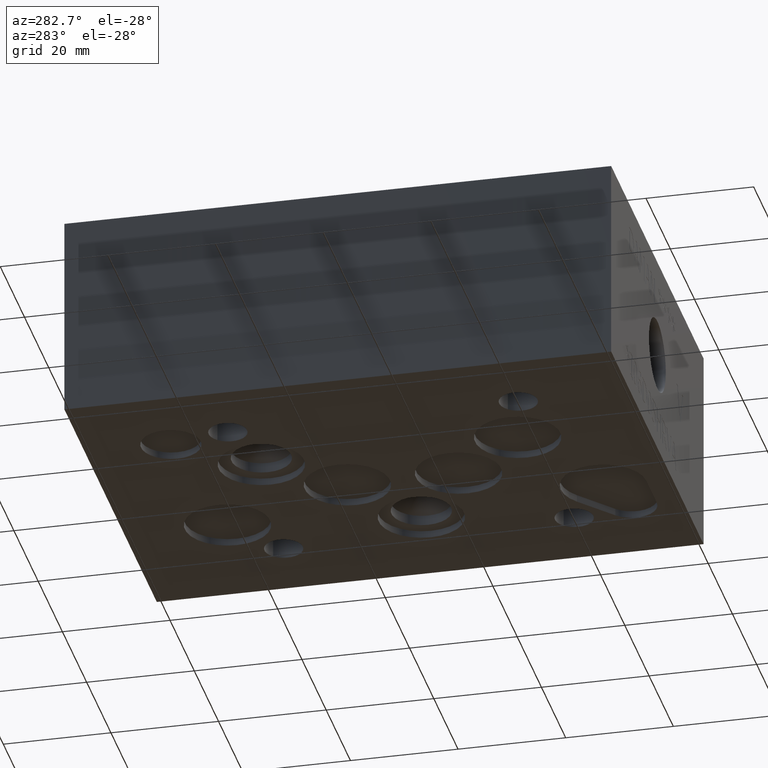
[diagram: clean part render]
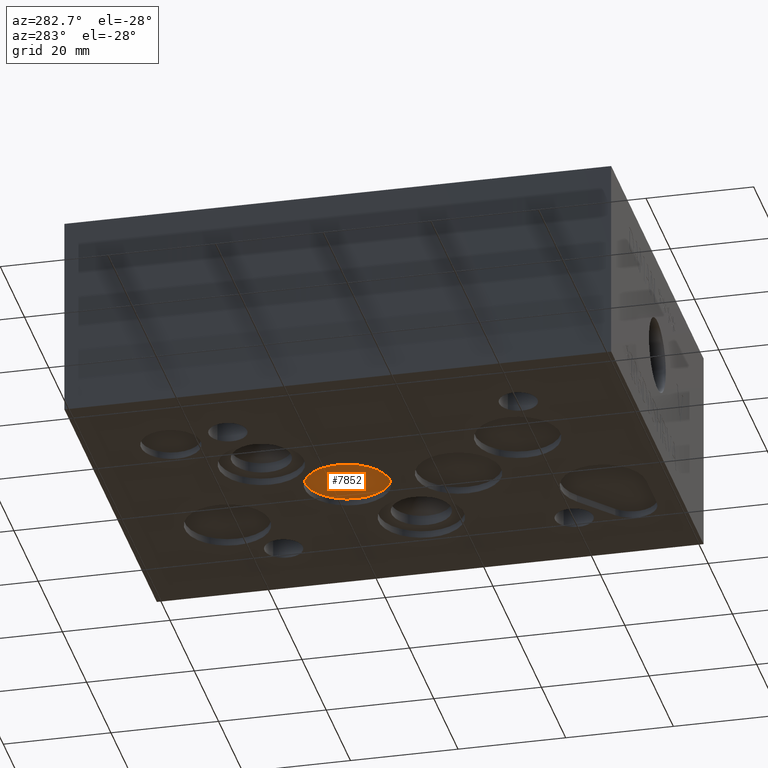
[diagram: same view with one face highlighted and labeled with its STEP entity id]
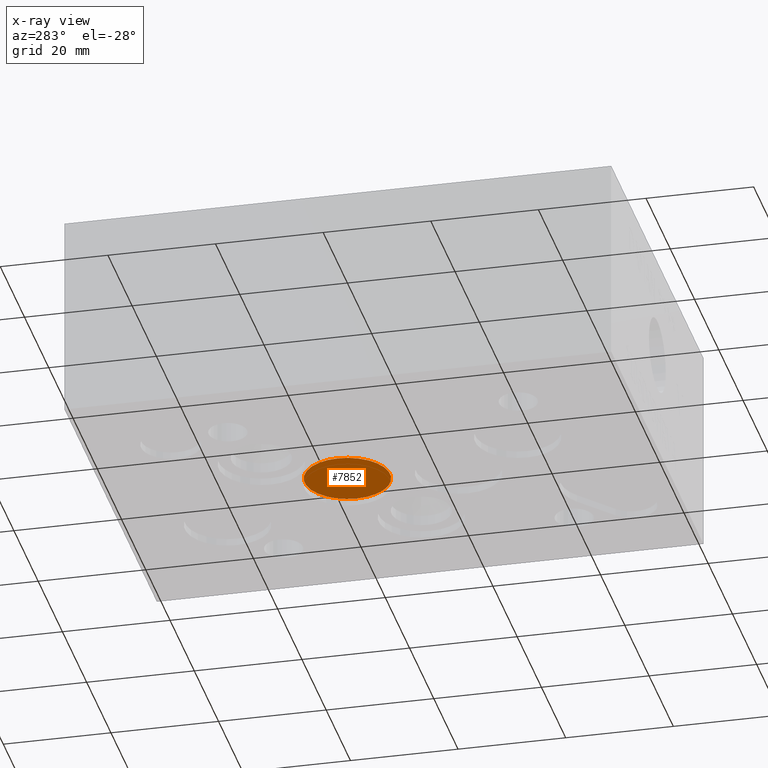
[diagram: x-ray of the same camera — body ghosted, the highlighted face saturated]
A machine part, auxiliary view. The second image highlights one B-rep face of the part: STEP entity #7852.
The next image is the same camera in x-ray: the body ghosted, the highlighted face saturated — about 0% of this face is hidden behind the body in this view.
In plain terms, the highlighted planar face has unit normal (0, 0, -1).
Its self-contained STEP definition (entity closure, byte-faithful):
#687=CIRCLE('',#8227,7.9375);
#688=CIRCLE('',#8228,7.9375);
#1151=FACE_OUTER_BOUND('',#1594,.T.);
#1594=EDGE_LOOP('',(#6951,#6952));
#3913=VERTEX_POINT('',#13028);
#3914=VERTEX_POINT('',#13030);
#4960=EDGE_CURVE('',#3914,#3913,#687,.T.);
#4961=EDGE_CURVE('',#3913,#3914,#688,.T.);
#6951=ORIENTED_EDGE('',*,*,#4960,.T.);
#6952=ORIENTED_EDGE('',*,*,#4961,.T.);
#7490=PLANE('',#8229);
#7852=ADVANCED_FACE('',(#1151),#7490,.T.);
#8227=AXIS2_PLACEMENT_3D('',#13031,#9733,#9734);
#8228=AXIS2_PLACEMENT_3D('',#13032,#9735,#9736);
#8229=AXIS2_PLACEMENT_3D('',#13033,#9737,#9738);
#9733=DIRECTION('center_axis',(0.,0.,-1.));
#9734=DIRECTION('ref_axis',(1.,0.,0.));
#9735=DIRECTION('center_axis',(0.,0.,-1.));
#9736=DIRECTION('ref_axis',(1.,0.,0.));
#9737=DIRECTION('center_axis',(0.,0.,-1.));
#9738=DIRECTION('ref_axis',(1.,0.,0.));
#13028=CARTESIAN_POINT('',(31.75635,57.95645,1.3208));
#13030=CARTESIAN_POINT('',(47.63135,57.95645,1.3208));
#13031=CARTESIAN_POINT('Origin',(39.69385,57.95645,1.3208));
#13032=CARTESIAN_POINT('Origin',(39.69385,57.95645,1.3208));
#13033=CARTESIAN_POINT('Origin',(39.69385,57.95645,1.3208));